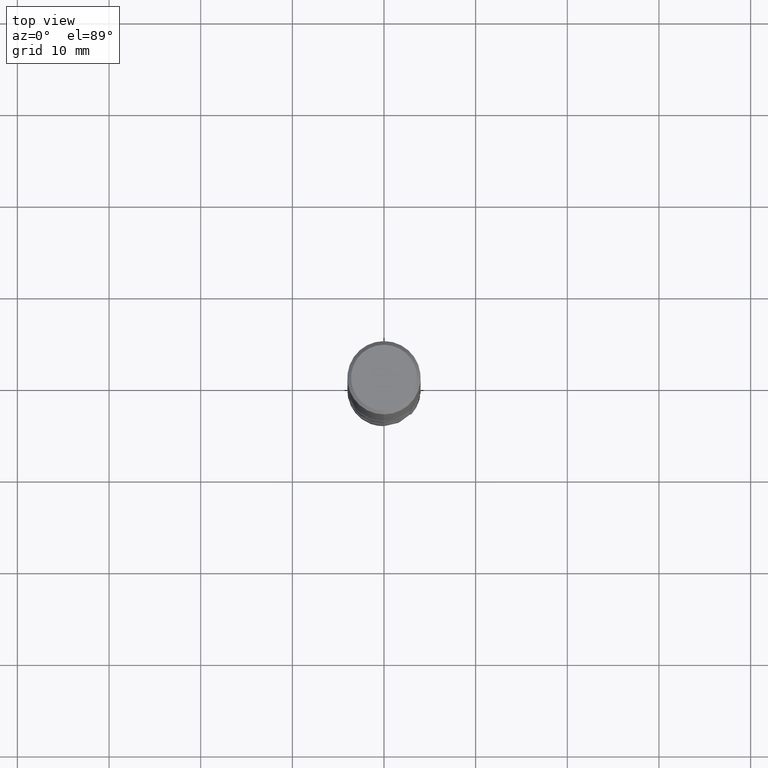
[diagram: clean part render]
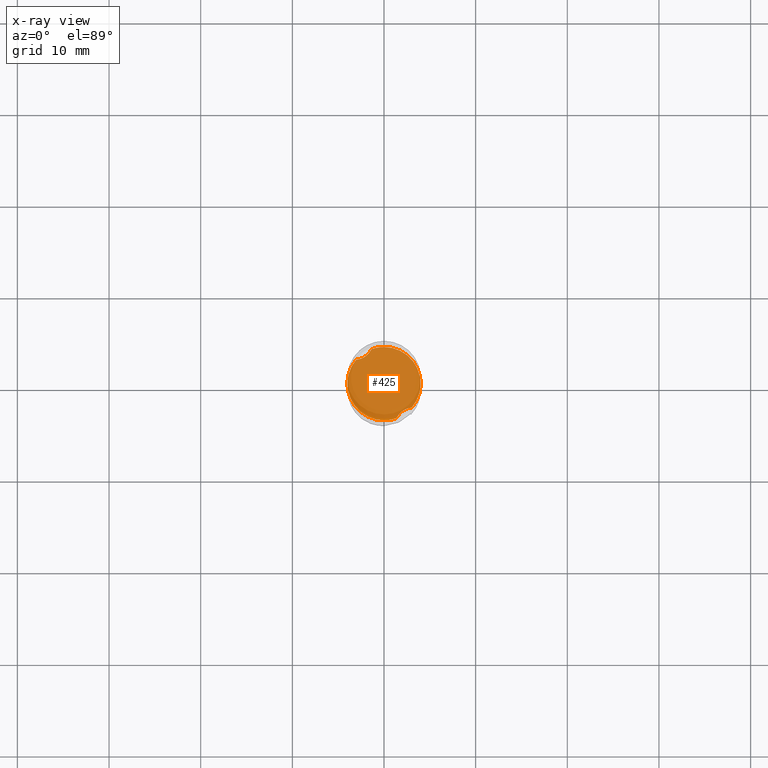
[diagram: x-ray — body ghosted, one internal face saturated and labeled with its STEP entity id]
A machine part, top view, then the same camera in x-ray: the body is ghosted and one INTERNAL B-rep face — a face not visible from any outside direction — is saturated and labeled: STEP entity #425.
In plain terms, the highlighted planar face has unit normal (-0, 0, 1).
Its self-contained STEP definition (entity closure, byte-faithful):
#341=EDGE_CURVE('',#359,#549,#805,.T.);
#359=VERTEX_POINT('',#825);
#361=VERTEX_POINT('',#827);
#405=EDGE_CURVE('',#473,#361,#874,.T.);
#425=ADVANCED_FACE('',(#896),#897,.T.);
#473=VERTEX_POINT('',#949);
#537=VERTEX_POINT('',#1021);
#549=VERTEX_POINT('',#1036);
#557=EDGE_CURVE('',#537,#361,#1044,.T.);
#569=VERTEX_POINT('',#1056);
#583=EDGE_CURVE('',#569,#537,#1071,.T.);
#611=EDGE_CURVE('',#473,#359,#1102,.T.);
#669=EDGE_CURVE('',#569,#549,#1165,.T.);
#805=CIRCLE('',#1595,3.9999);
#825=CARTESIAN_POINT('',(-4.89345678399292E-016,3.9999,-38.0));
#827=CARTESIAN_POINT('',(-3.03029553357838,2.61084449731786,-38.0));
#874=B_SPLINE_CURVE_WITH_KNOTS('',3,(#1886,#1887,#1888,#1889,#1890,#1891,#1892,#1893,#1894,#1895,#1896,#1897),.UNSPECIFIED.,.F.,.F.,(4,2,2,2,2,4),(0.0,0.870028033832064,1.66461421605618,2.46499859150773,2.9654963578107,3.48762550868089),.UNSPECIFIED.);
#896=FACE_OUTER_BOUND('',#1947,.T.);
#897=PLANE('',#1948);
#949=CARTESIAN_POINT('',(-1.36371149292712,3.76025145090837,-38.0));
#1021=CARTESIAN_POINT('',(4.90213714813351E-016,-3.9999,-38.0));
#1036=CARTESIAN_POINT('',(3.03029553357837,-2.61084449731786,-38.0));
#1044=CIRCLE('',#3716,3.9999);
#1056=CARTESIAN_POINT('',(1.36371149292712,-3.76025145090837,-38.0));
#1071=CIRCLE('',#3865,3.9999);
#1102=CIRCLE('',#4010,3.9999);
#1165=B_SPLINE_CURVE_WITH_KNOTS('',3,(#5038,#5039,#5040,#5041,#5042,#5043,#5044,#5045,#5046,#5047,#5048,#5049),.UNSPECIFIED.,.F.,.F.,(4,2,2,2,2,4),(0.0,0.870028033832007,1.66461421605614,2.4649985915077,2.96549635781062,3.48762550868079),.UNSPECIFIED.);
#1595=AXIS2_PLACEMENT_3D('',#5206,#5207,#5208);
#1886=CARTESIAN_POINT('',(-1.24649541003887,4.04989999999999,-38.0));
#1887=CARTESIAN_POINT('',(-1.33714343616133,3.7744215882839,-38.0));
#1888=CARTESIAN_POINT('',(-1.47619413300334,3.51944196814668,-37.9999999999884));
#1889=CARTESIAN_POINT('',(-1.83830310167318,3.10062007303773,-37.9999999999884));
#1890=CARTESIAN_POINT('',(-2.04681343588182,2.93820594602577,-38.0000000000006));
#1891=CARTESIAN_POINT('',(-2.52129934340419,2.70148229372364,-38.0000000000006));
#1892=CARTESIAN_POINT('',(-2.77917976251764,2.63201253298462,-38.0000000000001));
#1893=CARTESIAN_POINT('',(-3.21062830216234,2.59556338564399,-38.0000000000001));
#1894=CARTESIAN_POINT('',(-3.3776025283666,2.60009262903768,-38.0));
#1895=CARTESIAN_POINT('',(-3.7153488133652,2.6434232138864,-38.0));
#1896=CARTESIAN_POINT('',(-3.88510851469429,2.68357535262761,-38.0));
#1897=CARTESIAN_POINT('',(-4.0499,2.73923819383125,-38.0));
#1947=EDGE_LOOP('',(#5291,#5292,#5293,#5294,#5295,#5296));
#1948=AXIS2_PLACEMENT_3D('',#5297,#5298,#5299);
#3716=AXIS2_PLACEMENT_3D('',#5502,#5503,#5504);
#3865=AXIS2_PLACEMENT_3D('',#5532,#5533,#5534);
#4010=AXIS2_PLACEMENT_3D('',#5569,#5570,#5571);
#5038=CARTESIAN_POINT('',(1.24649541003887,-4.0499,-38.0));
#5039=CARTESIAN_POINT('',(1.33714343616133,-3.77442158828393,-38.0));
#5040=CARTESIAN_POINT('',(1.47619413300333,-3.51944196814669,-37.9999999999884));
#5041=CARTESIAN_POINT('',(1.83830310167319,-3.10062007303771,-37.9999999999884));
#5042=CARTESIAN_POINT('',(2.04681343588184,-2.93820594602577,-38.0000000000006));
#5043=CARTESIAN_POINT('',(2.52129934340417,-2.70148229372365,-38.0000000000006));
#5044=CARTESIAN_POINT('',(2.77917976251761,-2.63201253298462,-38.0000000000001));
#5045=CARTESIAN_POINT('',(3.21062830216234,-2.59556338564399,-38.0000000000001));
#5046=CARTESIAN_POINT('',(3.37760252836661,-2.60009262903768,-38.0));
#5047=CARTESIAN_POINT('',(3.7153488133652,-2.6434232138864,-38.0));
#5048=CARTESIAN_POINT('',(3.88510851469429,-2.68357535262761,-38.0));
#5049=CARTESIAN_POINT('',(4.0499,-2.73923819383125,-38.0));
#5206=CARTESIAN_POINT('',(0.0,0.0,-38.0));
#5207=DIRECTION('',(0.0,0.0,-1.0));
#5208=DIRECTION('',(0.0,1.0,0.0));
#5291=ORIENTED_EDGE('',*,*,#669,.T.);
#5292=ORIENTED_EDGE('',*,*,#341,.F.);
#5293=ORIENTED_EDGE('',*,*,#611,.F.);
#5294=ORIENTED_EDGE('',*,*,#405,.T.);
#5295=ORIENTED_EDGE('',*,*,#557,.F.);
#5296=ORIENTED_EDGE('',*,*,#583,.F.);
#5297=CARTESIAN_POINT('',(0.0,1.99995,-38.0));
#5298=DIRECTION('',(-0.0,0.0,1.0));
#5299=DIRECTION('',(0.0,-1.0,0.0));
#5502=CARTESIAN_POINT('',(0.0,0.0,-38.0));
#5503=DIRECTION('',(0.0,0.0,-1.0));
#5504=DIRECTION('',(0.0,1.0,0.0));
#5532=CARTESIAN_POINT('',(0.0,0.0,-38.0));
#5533=DIRECTION('',(0.0,0.0,-1.0));
#5534=DIRECTION('',(0.0,1.0,0.0));
#5569=CARTESIAN_POINT('',(0.0,0.0,-38.0));
#5570=DIRECTION('',(0.0,0.0,-1.0));
#5571=DIRECTION('',(0.0,1.0,0.0));